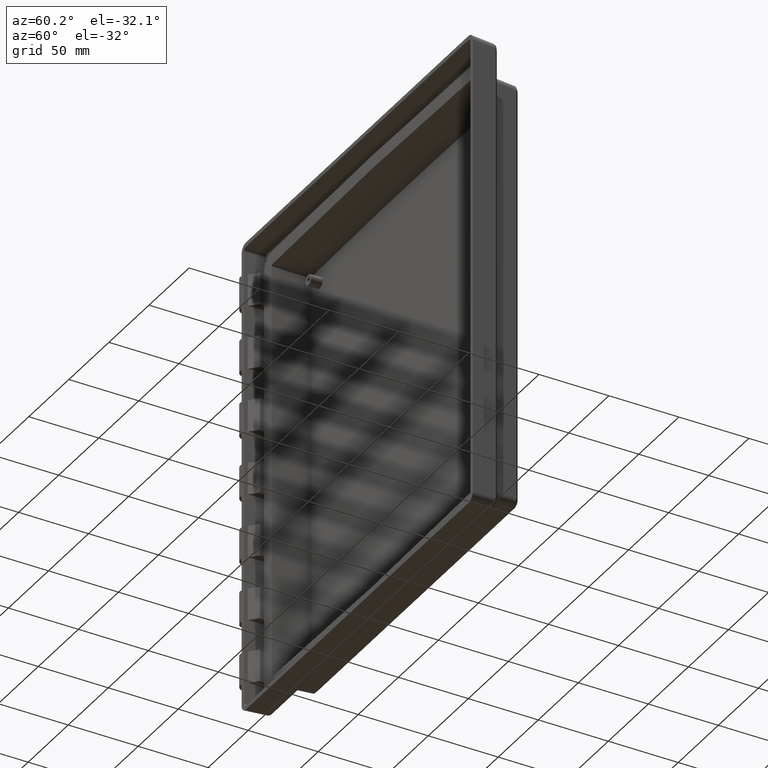
[diagram: clean part render]
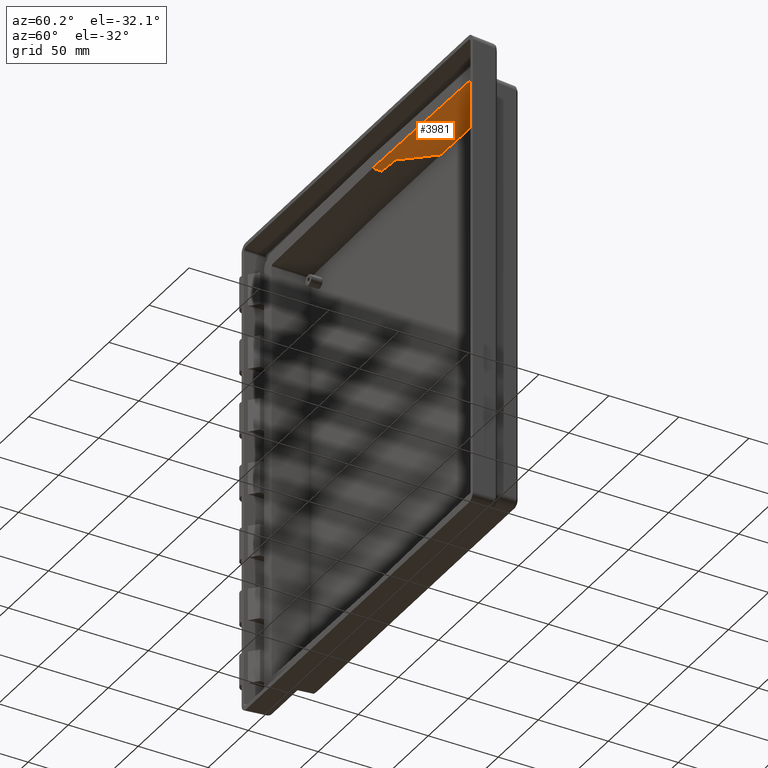
[diagram: same view with one face highlighted and labeled with its STEP entity id]
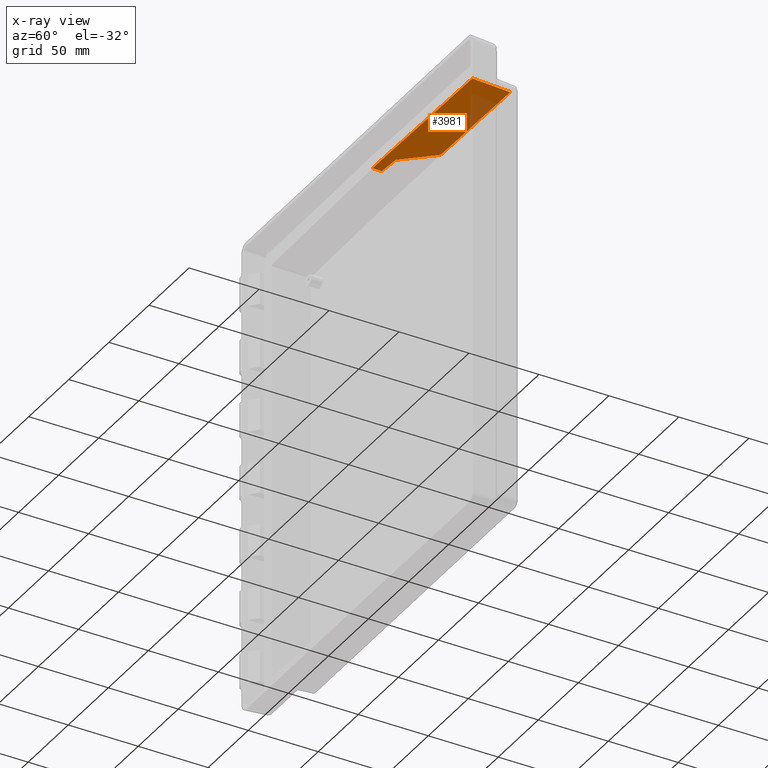
[diagram: x-ray of the same camera — body ghosted, the highlighted face saturated]
A machine part, auxiliary view. The second image highlights one B-rep face of the part: STEP entity #3981.
The next image is the same camera in x-ray: the body ghosted, the highlighted face saturated — about 12% of this face is hidden behind the body in this view.
In plain terms, the highlighted planar face has unit normal (-0.0174, -0.0349, -0.9992).
Its self-contained STEP definition (entity closure, byte-faithful):
#55 = VERTEX_POINT ( 'NONE', #4392 ) ;
#60 = EDGE_CURVE ( 'NONE', #55, #69, #4425, .T. ) ;
#69 = VERTEX_POINT ( 'NONE', #4465 ) ;
#619 = FACE_OUTER_BOUND ( 'NONE', #3982, .T. ) ;
#642 = DIRECTION ( 'NONE',  ( 0.7071608033720968600, 0.7060837636462101700, -0.03700428204050970600 ) ) ;
#643 = VECTOR ( 'NONE', #642, 999.9999999999998900 ) ;
#644 = CARTESIAN_POINT ( 'NONE',  ( 3.006537683799894700, -3.008367581152573400, 153.2529958878023700 ) ) ;
#645 = LINE ( 'NONE', #644, #643 ) ;
#660 = DIRECTION ( 'NONE',  ( -0.9984103685029273000, -0.05296346418215121900, 0.01927712446592724400 ) ) ;
#661 = VECTOR ( 'NONE', #660, 1000.000000000000000 ) ;
#662 = CARTESIAN_POINT ( 'NONE',  ( -0.5014249058761652800, 9.336819462858924700, 152.8830585023321200 ) ) ;
#663 = LINE ( 'NONE', #662, #661 ) ;
#664 = DIRECTION ( 'NONE',  ( 0.0000000000000000000, 0.9993906415863165200, -0.03490480639812537000 ) ) ;
#665 = DIRECTION ( 'NONE',  ( -0.01744177490282996400, -0.03489949670250105200, -0.9992386149554826100 ) ) ;
#666 = CARTESIAN_POINT ( 'NONE',  ( 0.0000000000000000000, 3.469446951953614200E-015, 153.2004046846862200 ) ) ;
#667 = AXIS2_PLACEMENT_3D ( 'NONE', #666, #665, #664 ) ;
#668 = PLANE ( 'NONE',  #667 ) ;
#697 = CARTESIAN_POINT ( 'NONE',  ( 16.26112852842701200, 10.22603588771702700, 152.5594101918631500 ) ) ;
#746 = DIRECTION ( 'NONE',  ( 0.0000000000000000000, -0.9993906415863165200, 0.03490480639812536300 ) ) ;
#747 = VECTOR ( 'NONE', #746, 1000.000000000000200 ) ;
#748 = CARTESIAN_POINT ( 'NONE',  ( 1.243224589843293300E-014, 3.461877027036331100E-015, 153.2004046846862200 ) ) ;
#749 = LINE ( 'NONE', #748, #747 ) ;
#750 = CARTESIAN_POINT ( 'NONE',  ( -1.935842978972868200E-013, 9.363418946277985100, 152.8733770821207000 ) ) ;
#1137 = DIRECTION ( 'NONE',  ( 0.03487899055459543800, -0.9988036077738138300, 0.03427548855823895500 ) ) ;
#1138 = VECTOR ( 'NONE', #1137, 999.9999999999998900 ) ;
#1139 = CARTESIAN_POINT ( 'NONE',  ( 124.2288981984347600, 10.28838099602706900, 150.6726482913235300 ) ) ;
#1140 = LINE ( 'NONE', #1139, #1138 ) ;
#1887 = EDGE_CURVE ( 'NONE', #1903, #1888, #5879, .T. ) ;
#1888 = VERTEX_POINT ( 'NONE', #5916 ) ;
#1903 = VERTEX_POINT ( 'NONE', #5898 ) ;
#3981 = ADVANCED_FACE ( 'NONE', ( #619 ), #668, .T. ) ;
#3982 = EDGE_LOOP ( 'NONE', ( #3983, #3985, #3986, #3987, #4023, #4024 ) ) ;
#3983 = ORIENTED_EDGE ( 'NONE', *, *, #3984, .F. ) ;
#3984 = EDGE_CURVE ( 'NONE', #4002, #4056, #663, .T. ) ;
#3985 = ORIENTED_EDGE ( 'NONE', *, *, #4001, .T. ) ;
#3986 = ORIENTED_EDGE ( 'NONE', *, *, #60, .F. ) ;
#3987 = ORIENTED_EDGE ( 'NONE', *, *, #4295, .T. ) ;
#4001 = EDGE_CURVE ( 'NONE', #4002, #69, #645, .T. ) ;
#4002 = VERTEX_POINT ( 'NONE', #697 ) ;
#4023 = ORIENTED_EDGE ( 'NONE', *, *, #1887, .F. ) ;
#4024 = ORIENTED_EDGE ( 'NONE', *, *, #4058, .F. ) ;
#4056 = VERTEX_POINT ( 'NONE', #750 ) ;
#4058 = EDGE_CURVE ( 'NONE', #4056, #1903, #749, .T. ) ;
#4295 = EDGE_CURVE ( 'NONE', #55, #1888, #1140, .T. ) ;
#4392 = CARTESIAN_POINT ( 'NONE',  ( 123.5196008331928100, 30.60000000000000100, 149.9756237117650800 ) ) ;
#4422 = DIRECTION ( 'NONE',  ( -0.9998476951563911600, 0.0000000000000000000, 0.01745240643728331400 ) ) ;
#4423 = VECTOR ( 'NONE', #4422, 1000.000000000000100 ) ;
#4424 = CARTESIAN_POINT ( 'NONE',  ( -0.01864921474554358200, 30.60000000000000100, 152.1319918874702100 ) ) ;
#4425 = LINE ( 'NONE', #4424, #4423 ) ;
#4465 = CARTESIAN_POINT ( 'NONE',  ( 36.66617049561030200, 30.60000000000000100, 151.4916559775460000 ) ) ;
#5878 = CARTESIAN_POINT ( 'NONE',  ( -0.001828354386817996600, 3.000000000000000000, 153.0956583320179600 ) ) ;
#5879 = LINE ( 'NONE', #5878, #5918 ) ;
#5898 = CARTESIAN_POINT ( 'NONE',  ( 0.0000000000000000000, 3.000000000000000000, 153.0956264179734200 ) ) ;
#5916 = CARTESIAN_POINT ( 'NONE',  ( 124.4834140711650700, 3.000000000000000000, 150.9227603428750800 ) ) ;
#5917 = DIRECTION ( 'NONE',  ( 0.9998476951563911600, 0.0000000000000000000, -0.01745240643728331400 ) ) ;
#5918 = VECTOR ( 'NONE', #5917, 1000.000000000000100 ) ;